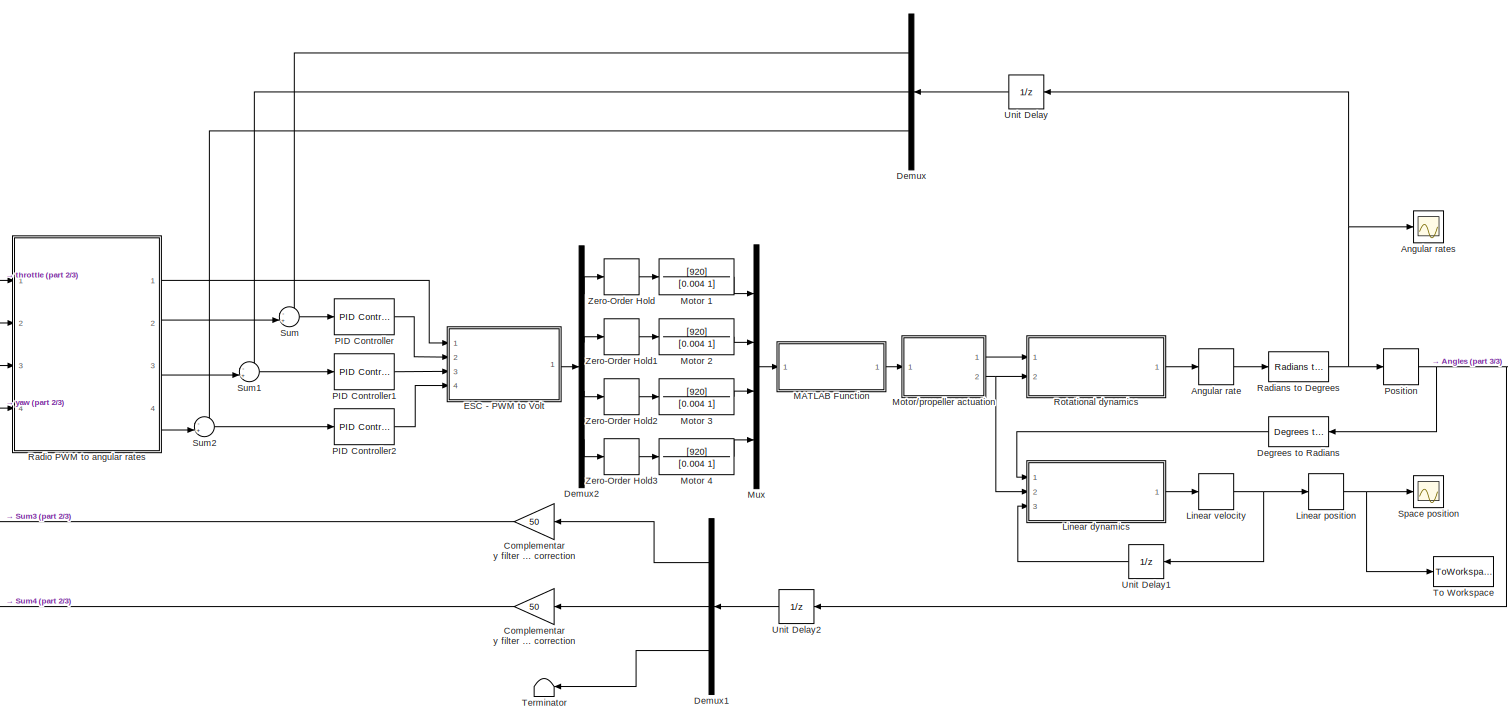
[diagram: root canvas - part 1/3, most of the canvas]
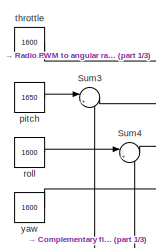
[diagram: root canvas - part 2/3, middle left region]
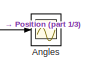
[diagram: root canvas - part 3/3, middle right region]
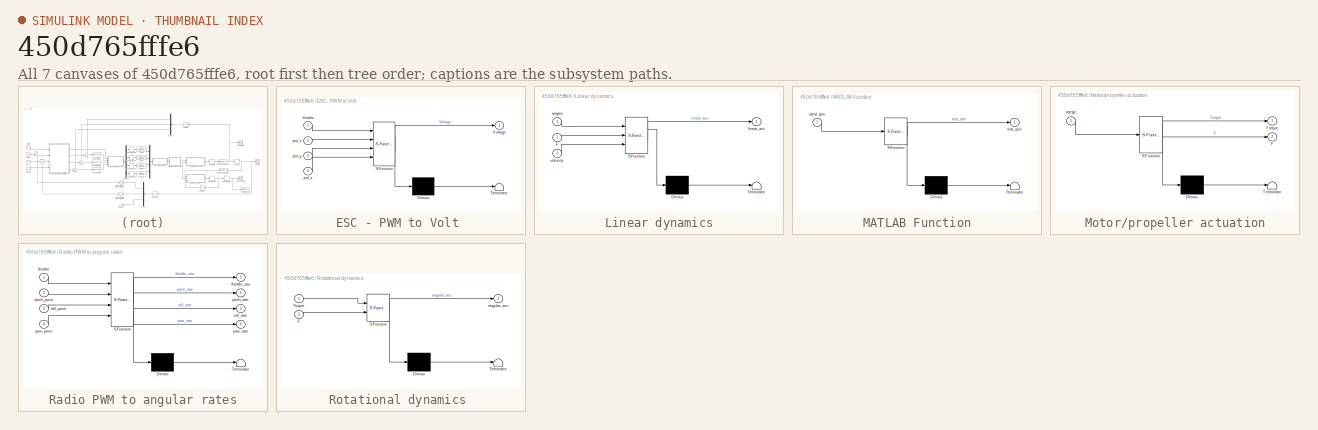
[diagram: thumbnail index - all 7 canvases of the model, root first then tree order]
MODEL slx_450d765fffe6
KIND model
CONFIG AbsTol = auto
CONFIG EnableMultiTasking = off
CONFIG FixedStep = auto
CONFIG MaxStep = auto
CONFIG MinStep = auto
CONFIG RelTol = 1e-3
CONFIG SampleTimeConstraint = Unconstrained
CONFIG Solver = FixedStepAuto
CONFIG SolverName = FixedStepAuto
CONFIG StartTime = 0.0
CONFIG StopTime = 5
BLOCK [Gain]        Complementary filter pitch correction
  Gain = 50
  OutDataTypeStr = Inherit: Inherit via internal rule
  ParamDataTypeStr = Inherit: Inherit via internal rule
  SaturateOnIntegerOverflow = off
BLOCK [Gain]        Complementary filter roll  correction
  Gain = 50
  OutDataTypeStr = Inherit: Inherit via internal rule
  ParamDataTypeStr = Inherit: Inherit via internal rule
  SaturateOnIntegerOverflow = off
BLOCK [Scope] Angles 
  Floating = off
  NumInputPorts = 1
  Ports = [1]
  ScopeSpecificationString = Simulink.scopes.TimeScopeBlockCfg('CurrentConfiguration', extmgr.ConfigurationSet(extmgr.Configuration('Core','General UI',true),extmgr.Configuration('Core','Source UI',true),extmgr.Configuration('Sources','WiredSimulink',true,'DataLoggingVariableName','ScopeData1'),extmgr.Configuration('Visuals','Time Domain',true,'SerializedDisplays',{struct('MinYLimReal','-1.48918','MaxYLimReal','4.86623','YLab...<+1515ch>
BLOCK [DiscreteIntegrator] Angular rate 
  ICPrevOutput = DiscIntNeverNeededParam
  ICPrevScaledInput = DiscIntNeverNeededParam
  InitialConditionSetting = Auto
  IntegratorMethod = Integration: Backward Euler
  Ports = [1, 1]
  SampleTime = -1
BLOCK [Scope] Angular rates
  Floating = off
  NumInputPorts = 1
  Ports = [1]
  ScopeSpecificationString = Simulink.scopes.TimeScopeBlockCfg('CurrentConfiguration', extmgr.ConfigurationSet(extmgr.Configuration('Core','General UI',true),extmgr.Configuration('Core','Source UI',true),extmgr.Configuration('Sources','WiredSimulink',true,'DataLoggingVariableName','ScopeData1'),extmgr.Configuration('Visuals','Time Domain',true,'SerializedDisplays',{struct('MinYLimReal','-6.01496','MaxYLimReal','54.13467','YLa...<+1551ch>
BLOCK [Reference] Degrees to Radians  REF=simulink_extras/Transformations/Degrees to
Radians
  Ports = [1, 1]
  SourceBlock = simulink_extras/Transformations/Degrees to\nRadians
  SourceProductBaseCode = SL
  SourceProductName = Simulink
  SourceType = DegreesToRadians
BLOCK [Demux] Demux
  DisplayOption = bar
  Outputs = 3
  Ports = [1, 3]
BLOCK [Demux] Demux1
  DisplayOption = bar
  Outputs = 3
  Ports = [1, 3]
BLOCK [Demux] Demux2
  DisplayOption = bar
  Ports = [1, 4]
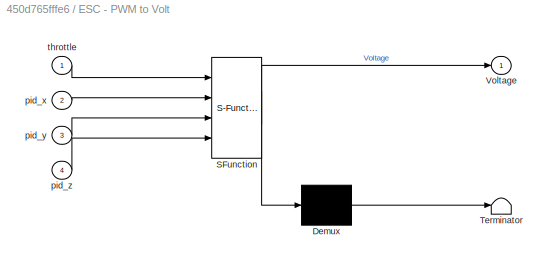
BLOCK [SubSystem] ESC - PWM to Volt 
  ErrorFcn = Stateflow.Translate.translate
  PermitHierarchicalResolution = ExplicitOnly
  Ports = [4, 1]
  RequestExecContextInheritance = off
  SFBlockType = MATLAB Function
  TreatAsAtomicUnit = on
BLOCK [Demux] ESC - PWM to Volt / Demux 
  Outputs = 1
  Ports = [1, 1]
BLOCK [S-Function] ESC - PWM to Volt / SFunction 
  EnableBusSupport = on
  FunctionName = sf_sfun
  PortCounts = [4 2]
  Ports = [4, 2]
  SFcnIsStateOwnerBlock = off
  SFunctionDeploymentMode = off
  Tag = Stateflow S-Function 2
BLOCK [Terminator] ESC - PWM to Volt / Terminator 
BLOCK [Outport] ESC - PWM to Volt /Voltage
  IconDisplay = Port number
  VectorParamsAs1DForOutWhenUnconnected = off
BLOCK [Inport] ESC - PWM to Volt /pid_x
  IconDisplay = Port number
  Port = 2
BLOCK [Inport] ESC - PWM to Volt /pid_y
  IconDisplay = Port number
  Port = 3
BLOCK [Inport] ESC - PWM to Volt /pid_z
  IconDisplay = Port number
  Port = 4
BLOCK [Inport] ESC - PWM to Volt /throttle
  IconDisplay = Port number
BLOCK [SubSystem] Linear dynamics
  ErrorFcn = Stateflow.Translate.translate
  PermitHierarchicalResolution = ExplicitOnly
  Ports = [3, 1]
  RequestExecContextInheritance = off
  SFBlockType = MATLAB Function
  TreatAsAtomicUnit = on
BLOCK [Demux] Linear dynamics/ Demux 
  Outputs = 1
  Ports = [1, 1]
BLOCK [S-Function] Linear dynamics/ SFunction 
  EnableBusSupport = on
  FunctionName = sf_sfun
  PortCounts = [3 2]
  Ports = [3, 2]
  SFcnIsStateOwnerBlock = off
  SFunctionDeploymentMode = off
  Tag = Stateflow S-Function 4
BLOCK [Terminator] Linear dynamics/ Terminator 
BLOCK [Inport] Linear dynamics/F
  IconDisplay = Port number
  Port = 2
BLOCK [Inport] Linear dynamics/angles
  IconDisplay = Port number
BLOCK [Outport] Linear dynamics/linear_acc
  IconDisplay = Port number
  VectorParamsAs1DForOutWhenUnconnected = off
BLOCK [Inport] Linear dynamics/velocity
  IconDisplay = Port number
  Port = 3
BLOCK [DiscreteIntegrator] Linear position
  ICPrevOutput = DiscIntNeverNeededParam
  ICPrevScaledInput = DiscIntNeverNeededParam
  InitialConditionSetting = Auto
  IntegratorMethod = Integration: Backward Euler
  Ports = [1, 1]
  SampleTime = -1
BLOCK [DiscreteIntegrator] Linear velocity
  ICPrevOutput = DiscIntNeverNeededParam
  ICPrevScaledInput = DiscIntNeverNeededParam
  InitialConditionSetting = Auto
  IntegratorMethod = Integration: Backward Euler
  Ports = [1, 1]
  SampleTime = -1
BLOCK [SubSystem] MATLAB Function
  ErrorFcn = Stateflow.Translate.translate
  PermitHierarchicalResolution = ExplicitOnly
  Ports = [1, 1]
  RequestExecContextInheritance = off
  SFBlockType = MATLAB Function
  TreatAsAtomicUnit = on
BLOCK [Demux] MATLAB Function/ Demux 
  Outputs = 1
  Ports = [1, 1]
BLOCK [S-Function] MATLAB Function/ SFunction 
  EnableBusSupport = on
  FunctionName = sf_sfun
  PortCounts = [1 2]
  Ports = [1, 2]
  SFcnIsStateOwnerBlock = off
  SFunctionDeploymentMode = off
  Tag = Stateflow S-Function 6
BLOCK [Terminator] MATLAB Function/ Terminator 
BLOCK [Inport] MATLAB Function/ideal_rpm
  IconDisplay = Port number
BLOCK [Outport] MATLAB Function/real_rpm
  IconDisplay = Port number
  VectorParamsAs1DForOutWhenUnconnected = off
BLOCK [TransferFcn] Motor 1
  Denominator = [0.004 1]
  Numerator = [920]
BLOCK [TransferFcn] Motor 2
  Denominator = [0.004 1]
  Numerator = [920]
BLOCK [TransferFcn] Motor 3
  Denominator = [0.004 1]
  Numerator = [920]
BLOCK [TransferFcn] Motor 4
  Denominator = [0.004 1]
  Numerator = [920]
BLOCK [SubSystem] Motor//propeller actuation
  ErrorFcn = Stateflow.Translate.translate
  PermitHierarchicalResolution = ExplicitOnly
  Ports = [1, 2]
  RequestExecContextInheritance = off
  SFBlockType = MATLAB Function
  TreatAsAtomicUnit = on
BLOCK [Demux] Motor//propeller actuation/ Demux 
  Outputs = 1
  Ports = [1, 1]
BLOCK [S-Function] Motor//propeller actuation/ SFunction 
  EnableBusSupport = on
  FunctionName = sf_sfun
  PortCounts = [1 3]
  Ports = [1, 3]
  SFcnIsStateOwnerBlock = off
  SFunctionDeploymentMode = off
  Tag = Stateflow S-Function 5
BLOCK [Terminator] Motor//propeller actuation/ Terminator 
BLOCK [Outport] Motor//propeller actuation/F
  IconDisplay = Port number
  Port = 2
  VectorParamsAs1DForOutWhenUnconnected = off
BLOCK [Inport] Motor//propeller actuation/RPM
  IconDisplay = Port number
BLOCK [Outport] Motor//propeller actuation/Torque
  IconDisplay = Port number
  VectorParamsAs1DForOutWhenUnconnected = off
BLOCK [Mux] Mux
  DisplayOption = bar
  Ports = [4, 1]
BLOCK [Reference] PID Controller  REF=simulink/Continuous/PID Controller
  Ports = [1, 1]
  SourceBlock = simulink/Continuous/PID Controller
  SourceProductBaseCode = SL
  SourceProductName = Simulink
  SourceType = PID 1dof
BLOCK [Reference] PID Controller1  REF=simulink/Continuous/PID Controller
  Ports = [1, 1]
  SourceBlock = simulink/Continuous/PID Controller
  SourceProductBaseCode = SL
  SourceProductName = Simulink
  SourceType = PID 1dof
BLOCK [Reference] PID Controller2  REF=simulink/Continuous/PID Controller
  Ports = [1, 1]
  SourceBlock = simulink/Continuous/PID Controller
  SourceProductBaseCode = SL
  SourceProductName = Simulink
  SourceType = PID 1dof
BLOCK [DiscreteIntegrator] Position
  ICPrevOutput = DiscIntNeverNeededParam
  ICPrevScaledInput = DiscIntNeverNeededParam
  InitialConditionSetting = Auto
  IntegratorMethod = Integration: Backward Euler
  Ports = [1, 1]
  SampleTime = -1
BLOCK [Reference] Radians to Degrees  REF=simulink_extras/Transformations/Radians
to Degrees
  Ports = [1, 1]
  SourceBlock = simulink_extras/Transformations/Radians\nto Degrees
  SourceProductBaseCode = SL
  SourceProductName = Simulink
  SourceType = RadiansToDegrees
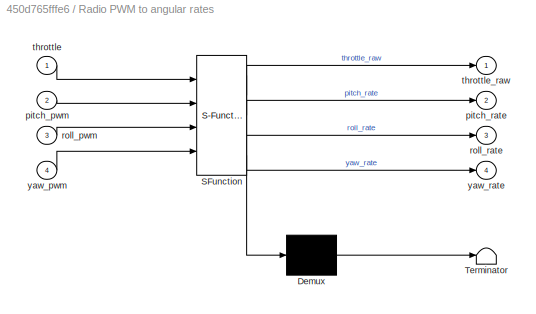
BLOCK [SubSystem] Radio PWM to angular rates
  ErrorFcn = Stateflow.Translate.translate
  PermitHierarchicalResolution = ExplicitOnly
  Ports = [4, 4]
  RequestExecContextInheritance = off
  SFBlockType = MATLAB Function
  TreatAsAtomicUnit = on
BLOCK [Demux] Radio PWM to angular rates/ Demux 
  Outputs = 1
  Ports = [1, 1]
BLOCK [S-Function] Radio PWM to angular rates/ SFunction 
  EnableBusSupport = on
  FunctionName = sf_sfun
  PortCounts = [4 5]
  Ports = [4, 5]
  SFcnIsStateOwnerBlock = off
  SFunctionDeploymentMode = off
  Tag = Stateflow S-Function 3
BLOCK [Terminator] Radio PWM to angular rates/ Terminator 
BLOCK [Inport] Radio PWM to angular rates/pitch_pwm
  IconDisplay = Port number
  Port = 2
BLOCK [Outport] Radio PWM to angular rates/pitch_rate
  IconDisplay = Port number
  Port = 2
  VectorParamsAs1DForOutWhenUnconnected = off
BLOCK [Inport] Radio PWM to angular rates/roll_pwm
  IconDisplay = Port number
  Port = 3
BLOCK [Outport] Radio PWM to angular rates/roll_rate
  IconDisplay = Port number
  Port = 3
  VectorParamsAs1DForOutWhenUnconnected = off
BLOCK [Inport] Radio PWM to angular rates/throttle
  IconDisplay = Port number
BLOCK [Outport] Radio PWM to angular rates/throttle_raw
  IconDisplay = Port number
  VectorParamsAs1DForOutWhenUnconnected = off
BLOCK [Inport] Radio PWM to angular rates/yaw_pwm
  IconDisplay = Port number
  Port = 4
BLOCK [Outport] Radio PWM to angular rates/yaw_rate
  IconDisplay = Port number
  Port = 4
  VectorParamsAs1DForOutWhenUnconnected = off
BLOCK [SubSystem] Rotational dynamics 
  ErrorFcn = Stateflow.Translate.translate
  PermitHierarchicalResolution = ExplicitOnly
  Ports = [2, 1]
  RequestExecContextInheritance = off
  SFBlockType = MATLAB Function
  TreatAsAtomicUnit = on
BLOCK [Demux] Rotational dynamics / Demux 
  Outputs = 1
  Ports = [1, 1]
BLOCK [S-Function] Rotational dynamics / SFunction 
  EnableBusSupport = on
  FunctionName = sf_sfun
  PortCounts = [2 2]
  Ports = [2, 2]
  SFcnIsStateOwnerBlock = off
  SFunctionDeploymentMode = off
  Tag = Stateflow S-Function 1
BLOCK [Terminator] Rotational dynamics / Terminator 
BLOCK [Inport] Rotational dynamics /F
  IconDisplay = Port number
  Port = 2
BLOCK [Inport] Rotational dynamics /Torque
  IconDisplay = Port number
BLOCK [Outport] Rotational dynamics /angular_acc
  IconDisplay = Port number
  VectorParamsAs1DForOutWhenUnconnected = off
BLOCK [Scope] Space position
  Floating = off
  NumInputPorts = 1
  Ports = [1]
  ScopeSpecificationString = Simulink.scopes.TimeScopeBlockCfg('CurrentConfiguration', extmgr.ConfigurationSet(extmgr.Configuration('Core','General UI',true),extmgr.Configuration('Core','Source UI',true),extmgr.Configuration('Sources','WiredSimulink',true,'DataLoggingVariableName','ScopeData1'),extmgr.Configuration('Visuals','Time Domain',true,'SerializedDisplays',{struct('MinYLimReal','-1.6754','MaxYLimReal','14.12462','YLab...<+1468ch>
BLOCK [Sum] Sum
  IconShape = round
  InputSameDT = off
  Inputs = -+|
  OutDataTypeStr = Inherit: Inherit via internal rule
  Ports = [2, 1]
  SaturateOnIntegerOverflow = off
BLOCK [Sum] Sum1
  IconShape = round
  InputSameDT = off
  Inputs = -+|
  OutDataTypeStr = Inherit: Inherit via internal rule
  Ports = [2, 1]
  SaturateOnIntegerOverflow = off
BLOCK [Sum] Sum2
  IconShape = round
  InputSameDT = off
  Inputs = -+|
  OutDataTypeStr = Inherit: Inherit via internal rule
  Ports = [2, 1]
  SaturateOnIntegerOverflow = off
BLOCK [Sum] Sum3
  IconShape = round
  InputSameDT = off
  Inputs = |+-
  OutDataTypeStr = Inherit: Inherit via internal rule
  Ports = [2, 1]
  SaturateOnIntegerOverflow = off
BLOCK [Sum] Sum4
  IconShape = round
  InputSameDT = off
  Inputs = |+-
  OutDataTypeStr = Inherit: Inherit via internal rule
  Ports = [2, 1]
  SaturateOnIntegerOverflow = off
BLOCK [Terminator] Terminator
BLOCK [ToWorkspace] To Workspace
  FixptAsFi = on
  MaxDataPoints = inf
  Ports = [1]
  SampleTime = -1
  Save2DSignal = 2-D array (concatenate along first dimension)
  VariableName = linpos
BLOCK [UnitDelay] Unit Delay
  HasFrameUpgradeWarning = on
  SampleTime = -1
BLOCK [UnitDelay] Unit Delay1
  HasFrameUpgradeWarning = on
  SampleTime = -1
BLOCK [UnitDelay] Unit Delay2
  HasFrameUpgradeWarning = on
  SampleTime = -1
BLOCK [ZeroOrderHold] Zero-Order Hold
  SampleTime = -1
BLOCK [ZeroOrderHold] Zero-Order Hold1
  SampleTime = -1
BLOCK [ZeroOrderHold] Zero-Order Hold2
  SampleTime = -1
BLOCK [ZeroOrderHold] Zero-Order Hold3
  SampleTime = -1
BLOCK [Constant] pitch
  Value = 1650
BLOCK [Constant] roll
  Value = 1600
BLOCK [Constant] throttle
  Value = 1600
BLOCK [Constant] yaw
  Value = 1600
LINE        Complementary filter pitch correction:1 -> Sum3:2
LINE        Complementary filter roll  correction:1 -> Sum4:2
LINE Angular rate :1 -> Radians to Degrees:1
LINE Degrees to Radians:1 -> Linear dynamics:1
LINE Demux1:1 ->        Complementary filter pitch correction:1
LINE Demux1:2 ->        Complementary filter roll  correction:1
LINE Demux1:3 -> Terminator:1
LINE Demux2:1 -> Zero-Order Hold:1
LINE Demux2:2 -> Zero-Order Hold1:1
LINE Demux2:3 -> Zero-Order Hold2:1
LINE Demux2:4 -> Zero-Order Hold3:1
LINE Demux:1 -> Sum:1
LINE Demux:2 -> Sum1:1
LINE Demux:3 -> Sum2:1
LINE ESC - PWM to Volt :1 -> Demux2:1
LINE Linear dynamics:1 -> Linear velocity:1
NET Linear position:1 -> Space position:1, To Workspace:1
NET Linear velocity:1 -> Linear position:1, Unit Delay1:1
LINE MATLAB Function:1 -> Motor//propeller actuation:1
LINE Motor 1:1 -> Mux:1
LINE Motor 2:1 -> Mux:2
LINE Motor 3:1 -> Mux:3
LINE Motor 4:1 -> Mux:4
LINE Motor//propeller actuation:1 -> Rotational dynamics :1
NET Motor//propeller actuation:2 -> Linear dynamics:2, Rotational dynamics :2
LINE Mux:1 -> MATLAB Function:1
LINE PID Controller1:1 -> ESC - PWM to Volt :3
LINE PID Controller2:1 -> ESC - PWM to Volt :4
LINE PID Controller:1 -> ESC - PWM to Volt :2
NET Position:1 -> Angles :1, Degrees to Radians:1, Unit Delay2:1
NET Radians to Degrees:1 -> Angular rates:1, Position:1, Unit Delay:1
LINE Radio PWM to angular rates:1 -> ESC - PWM to Volt :1
LINE Radio PWM to angular rates:2 -> Sum:2
LINE Radio PWM to angular rates:3 -> Sum1:2
LINE Radio PWM to angular rates:4 -> Sum2:2
LINE Rotational dynamics :1 -> Angular rate :1
LINE Sum1:1 -> PID Controller1:1
LINE Sum2:1 -> PID Controller2:1
LINE Sum3:1 -> Radio PWM to angular rates:2
LINE Sum4:1 -> Radio PWM to angular rates:3
LINE Sum:1 -> PID Controller:1
LINE Unit Delay1:1 -> Linear dynamics:3
LINE Unit Delay2:1 -> Demux1:1
LINE Unit Delay:1 -> Demux:1
LINE Zero-Order Hold1:1 -> Motor 2:1
LINE Zero-Order Hold2:1 -> Motor 3:1
LINE Zero-Order Hold3:1 -> Motor 4:1
LINE Zero-Order Hold:1 -> Motor 1:1
LINE pitch:1 -> Sum3:1
LINE roll:1 -> Sum4:1
LINE throttle:1 -> Radio PWM to angular rates:1
LINE yaw:1 -> Radio PWM to angular rates:4
note: NET lines group one-source signal fan-out (src -> all destinations, sorted); 1:1 wires keep LINE
CHART Rotational dynamics
 states=1 transitions=1
  STATE_LABEL 'eML_blk_kernel()'
  STATE_LABEL 'SCRIPT:\nfunction angular_acc = fcn(Torque, F)\n\n    Moment      = [0 0 0];\n    angular_acc = [0 0 0];\n    Inertia     = [0.00305 0.00305 0.00611]; %Inertia for X,Y,Z\n    axis_to_com = 0.1167;                    %distance between rotation axis and the center of mass of the vehicle\n\n    \n    Moment(1) = (F(2)+F(4))*axis_to_com-(F(1)+F(3))*axis_to_com;\n    Moment(2) = (F(3)+F(4))*axis_to_com-(F(1)+F(2...<+159ch>'
CHART ESC - PWM to Volt
 states=1 transitions=1
  STATE_LABEL 'eML_blk_kernel()'
  STATE_LABEL 'SCRIPT:\n\nfunction Voltage = fcn(throttle,pid_x,pid_y,pid_z)\n    %Parameters names, except the phisical ones, are directly taken from the C code implementation i.o.t. have 1:1 match  \n    Voltage        = [0;0;0;0];\n    \n    if( throttle > 1800 )\n        throttle = 1800;  %leave room for PID controller\n    end\n    \n    Voltage(1) = throttle-pid_y-pid_x-pid_z;  %rear  right motor PWM\n    Voltage(2) ...<+444ch>'
CHART Radio PWM to angular rates states=1 transitions=1
  STATE_LABEL 'eML_blk_kernel()'
  STATE_LABEL 'SCRIPT:\nfunction [throttle_raw,pitch_rate,roll_rate,yaw_rate] = fcn(throttle,pitch_pwm,roll_pwm,yaw_pwm)\n\nDEADBAND_UPPER_BOUND      = 1508;\nDEADBAND_LOWER_BOUND      = 1492;\nSETPOINT_PITCH_SPEED_RATE = 3.0;\nSETPOINT_ROLL_SPEED_RATE  = 3.0;\nSETPOINT_YAW_SPEED_RATE   = 3.0;\n\npitch_rate   = 0;\nroll_rate    = 0;\nyaw_rate     = 0;\nthrottle_raw = throttle;\n\nif( pitch_pwm > DEADBAND_UPPER_BOUND )\n    pit...<+692ch>'
CHART Linear dynamics states=1 transitions=1
  STATE_LABEL 'eML_blk_kernel()'
  STATE_LABEL 'SCRIPT:\nfunction linear_acc = fcn(angles,F,velocity)\n    m   = 0.673;\n    g   = 9.81;\n    \n    linear_acc = [0 0 0];\n    Fprop      = [0 0 0];\n    \n    %Vettori di spinta (thrust vectors) vengono decomposti sulle componenti pitch e roll\n    Fprop(1) = sin(angles(2)) * cos(angles(1)) * (F(1)+F(2)+F(3)+F(4));\n    Fprop(2) = sin(angles(1)) * cos(angles(2)) * (F(1)+F(2)+F(3)+F(4));\n    Fprop(3) = (F(1...<+894ch>'
CHART Motor//propeller
actuation states=1 transitions=1
  STATE_LABEL 'eML_blk_kernel()'
  STATE_LABEL 'SCRIPT:\nfunction [Torque, F] = fcn(RPM)\n    \n    Torque         = [0 0 0 0];\n    F              = [0 0 0 0];\n\n    for i = 1:4\n        %RPM(i)     = -1.87*Voltage(i)^3-1.08*10^-14*Voltage(i)^2+920*Voltage(i)-3.79*10^-14;\n        Ct         = 6.3*10^-19*RPM(i)^4-1.51*10^-14*RPM(i)^3+1.21*10^-10*RPM(i)^2-2.58*10^-7*RPM(i)+0.12;\n        F(i)       = Ct*1.225*(RPM(i)/60)^2*0.001704;\n        Torque(i)  ...<+155ch>'
CHART MATLAB Function states=1 transitions=1
  STATE_LABEL 'eML_blk_kernel()'
  STATE_LABEL 'SCRIPT:\nfunction real_rpm = fcn(ideal_rpm)\n\n    real_rpm = [0 0 0 0];\n    \n    for i = 1:4\n        real_rpm(i) = -2.4*10^-9*ideal_rpm(i)^3-9.22*10^-21*ideal_rpm(i)^2+ideal_rpm(i)+9.36*10^-15;\n    end\n\nend\n'
